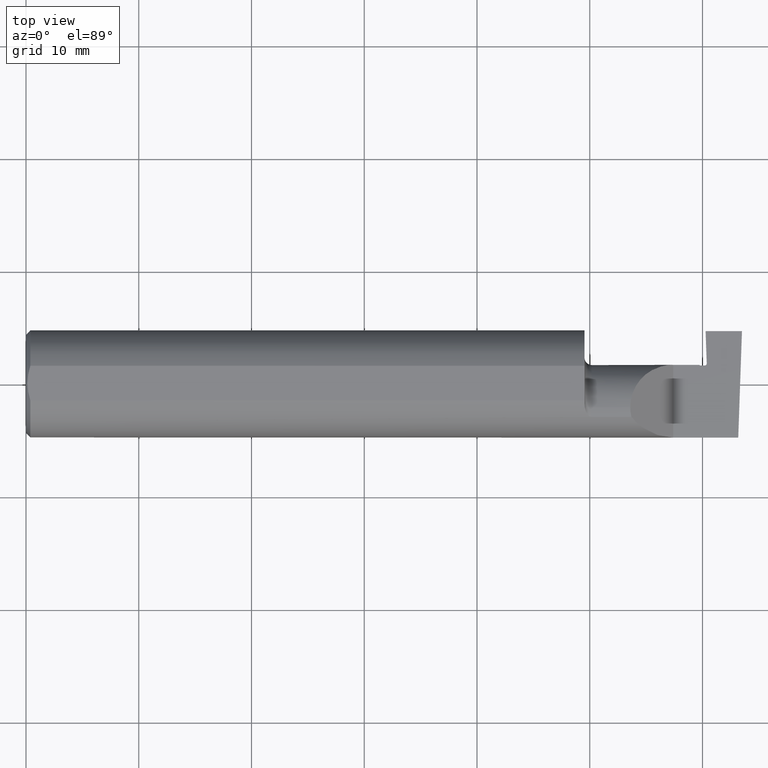
[diagram: clean part render]
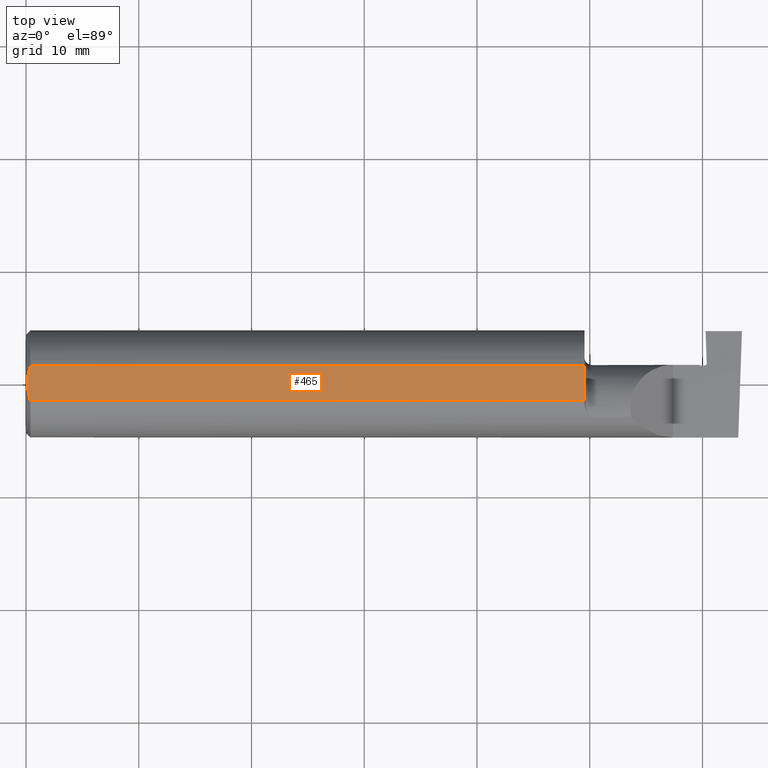
[diagram: same view with one face highlighted and labeled with its STEP entity id]
A machine part, top view. The second image highlights one B-rep face of the part: STEP entity #465.
In plain terms, the highlighted planar face has unit normal (0, -0, 1).
Its self-contained STEP definition (entity closure, byte-faithful):
#20 = EDGE_CURVE ( 'NONE', #475, #688, #405, .T. ) ;
#51 = DIRECTION ( 'NONE',  ( 1.000000000000000000, 0.000000000000000000, 0.000000000000000000 ) ) ;
#91 = CARTESIAN_POINT ( 'NONE',  ( 0.004999999999999833571, -0.01026662907944655458, 0.1773499999999999521 ) ) ;
#108 = CARTESIAN_POINT ( 'NONE',  ( 0.005916828623699125177, 0.02060071390057613763, 0.1773499999999999799 ) ) ;
#112 = CARTESIAN_POINT ( 'NONE',  ( 0.004999999999999835305, 2.941982542510190671E-17, 0.1773499999999999799 ) ) ;
#149 = ORIENTED_EDGE ( 'NONE', *, *, #915, .T. ) ;
#166 = CARTESIAN_POINT ( 'NONE',  ( 0.009318557230853204490, -0.04061090184993776386, 0.1773499999999999799 ) ) ;
#180 = DIRECTION ( 'NONE',  ( 1.000000000000000000, 0.000000000000000000, -0.000000000000000000 ) ) ;
#187 = FACE_OUTER_BOUND ( 'NONE', #589, .T. ) ;
#291 = VERTEX_POINT ( 'NONE', #363 ) ;
#326 = DIRECTION ( 'NONE',  ( 0.000000000000000000, -0.000000000000000000, 1.000000000000000000 ) ) ;
#332 = ORIENTED_EDGE ( 'NONE', *, *, #548, .T. ) ;
#345 = LINE ( 'NONE', #487, #438 ) ;
#363 = CARTESIAN_POINT ( 'NONE',  ( 1.949999999999999956, 0.06039039658754216666, 0.1773499999999999799 ) ) ;
#401 = VERTEX_POINT ( 'NONE', #892 ) ;
#405 = B_SPLINE_CURVE_WITH_KNOTS ( 'NONE', 3,
 ( #970, #91, #484, #166, #901, #573 ),
 .UNSPECIFIED., .F., .F.,
 ( 4, 2, 4 ),
 ( 0.005750933109916887831, 0.006521788775031543001, 0.007292644440146199038 ),
 .UNSPECIFIED. ) ;
#417 = CARTESIAN_POINT ( 'NONE',  ( 1.949999999999999956, -0.1873500000000000165, 0.1773499999999999799 ) ) ;
#426 = VERTEX_POINT ( 'NONE', #559 ) ;
#429 = CARTESIAN_POINT ( 'NONE',  ( 0.000000000000000000, 0.06039039658753697637, 0.1773499999999999799 ) ) ;
#438 = VECTOR ( 'NONE', #51, 39.37007874015748143 ) ;
#444 = DIRECTION ( 'NONE',  ( -1.000000000000000000, -0.000000000000000000, -0.000000000000000000 ) ) ;
#465 = ADVANCED_FACE ( 'NONE', ( #187 ), #581, .T. ) ;
#475 = VERTEX_POINT ( 'NONE', #499 ) ;
#484 = CARTESIAN_POINT ( 'NONE',  ( 0.005896899252109314912, -0.02043863390046160924, 0.1773500000000000354 ) ) ;
#486 = CARTESIAN_POINT ( 'NONE',  ( 0.01499999999999999944, -0.06039039658753697637, 0.1773499999999999799 ) ) ;
#487 = CARTESIAN_POINT ( 'NONE',  ( 0.000000000000000000, -0.06039039658753697637, 0.1773499999999999799 ) ) ;
#488 = ORIENTED_EDGE ( 'NONE', *, *, #20, .T. ) ;
#499 = CARTESIAN_POINT ( 'NONE',  ( 0.004999999999999835305, 2.941982542510190671E-17, 0.1773499999999999799 ) ) ;
#504 = LINE ( 'NONE', #417, #567 ) ;
#536 = EDGE_CURVE ( 'NONE', #688, #401, #345, .T. ) ;
#545 = ORIENTED_EDGE ( 'NONE', *, *, #536, .T. ) ;
#548 = EDGE_CURVE ( 'NONE', #401, #291, #504, .T. ) ;
#555 = VECTOR ( 'NONE', #444, 39.37007874015748143 ) ;
#559 = CARTESIAN_POINT ( 'NONE',  ( 0.01499999999999756042, 0.06039039658754215278, 0.1773499999999999799 ) ) ;
#567 = VECTOR ( 'NONE', #826, 39.37007874015748143 ) ;
#573 = CARTESIAN_POINT ( 'NONE',  ( 0.01499999999999999944, -0.06039039658753697637, 0.1773499999999999799 ) ) ;
#579 = B_SPLINE_CURVE_WITH_KNOTS ( 'NONE', 3,
 ( #818, #832, #597, #108, #747, #112 ),
 .UNSPECIFIED., .F., .F.,
 ( 4, 2, 4 ),
 ( 0.004207325536406422359, 0.004979129323161655095, 0.005750933109916887831 ),
 .UNSPECIFIED. ) ;
#581 = PLANE ( 'NONE',  #672 ) ;
#587 = CARTESIAN_POINT ( 'NONE',  ( 2.500000000000000000, -0.1873500000000000165, 0.1773499999999999799 ) ) ;
#589 = EDGE_LOOP ( 'NONE', ( #545, #332, #149, #783, #488 ) ) ;
#597 = CARTESIAN_POINT ( 'NONE',  ( 0.009346310357820472939, 0.04072930668827419443, 0.1773500000000000354 ) ) ;
#636 = EDGE_CURVE ( 'NONE', #426, #475, #579, .T. ) ;
#672 = AXIS2_PLACEMENT_3D ( 'NONE', #587, #326, #180 ) ;
#688 = VERTEX_POINT ( 'NONE', #486 ) ;
#690 = LINE ( 'NONE', #429, #555 ) ;
#747 = CARTESIAN_POINT ( 'NONE',  ( 0.004999999999999839642, 0.01027925662263861305, 0.1773499999999999799 ) ) ;
#783 = ORIENTED_EDGE ( 'NONE', *, *, #636, .T. ) ;
#818 = CARTESIAN_POINT ( 'NONE',  ( 0.01499999999999756042, 0.06039039658754215278, 0.1773499999999999799 ) ) ;
#826 = DIRECTION ( 'NONE',  ( -0.000000000000000000, 1.000000000000000000, 0.000000000000000000 ) ) ;
#832 = CARTESIAN_POINT ( 'NONE',  ( 0.01185291896084217714, 0.05062716160312498437, 0.1773499999999999521 ) ) ;
#892 = CARTESIAN_POINT ( 'NONE',  ( 1.949999999999999956, -0.06039039658753699025, 0.1773499999999999799 ) ) ;
#901 = CARTESIAN_POINT ( 'NONE',  ( 0.01186375298701897348, -0.05066077215909271098, 0.1773499999999999799 ) ) ;
#915 = EDGE_CURVE ( 'NONE', #291, #426, #690, .T. ) ;
#970 = CARTESIAN_POINT ( 'NONE',  ( 0.004999999999999835305, 2.941982542510190671E-17, 0.1773499999999999799 ) ) ;